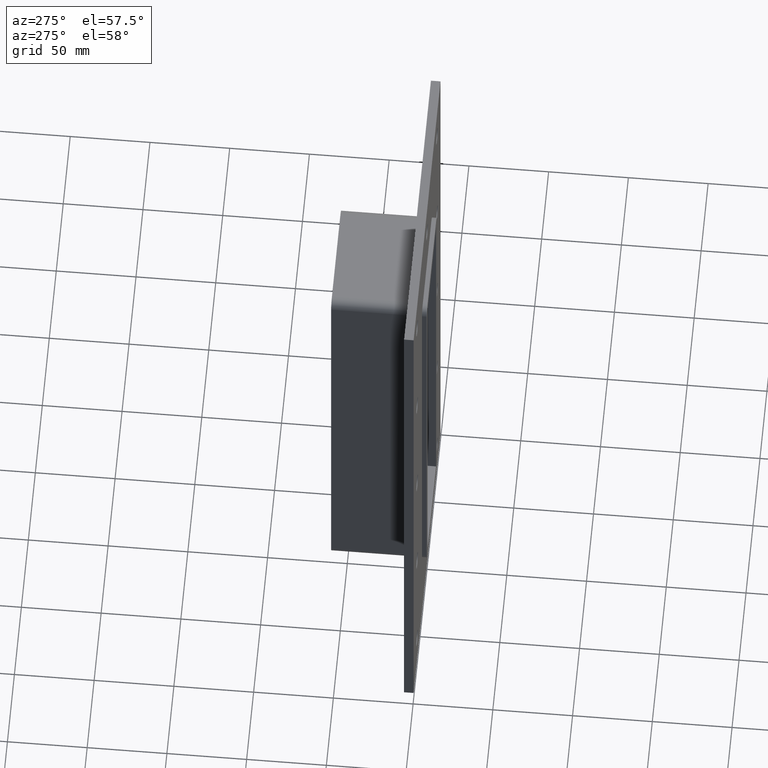
[diagram: clean part render]
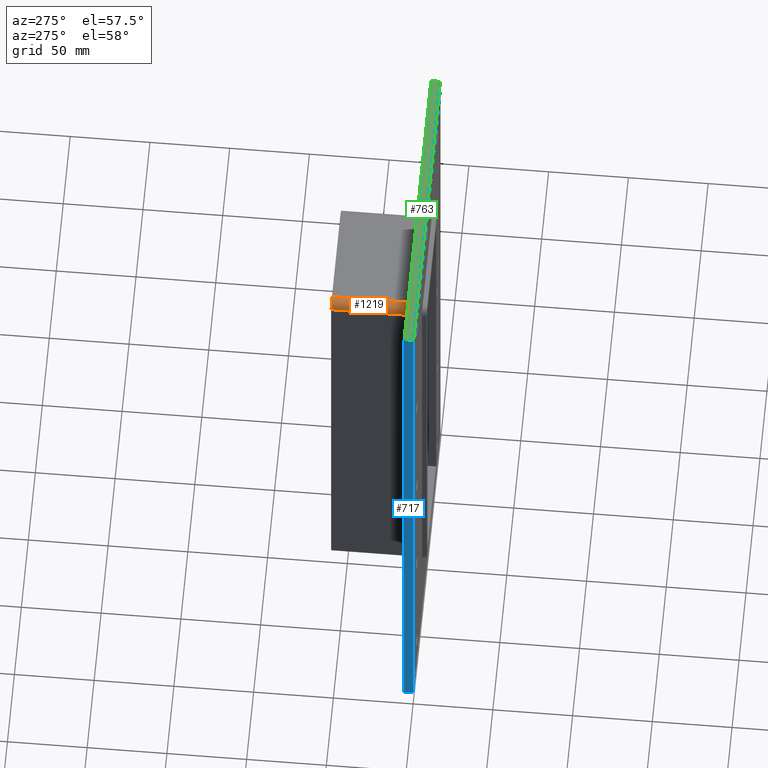
[diagram: same view with three faces highlighted in distinct colors, each labeled with its STEP entity id]
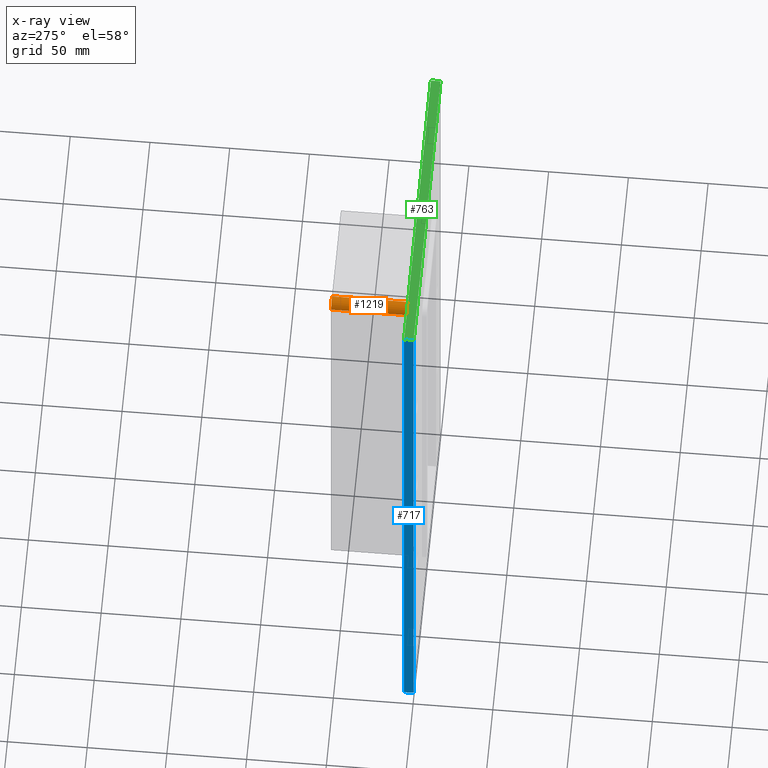
[diagram: x-ray of the same camera — body ghosted, the three highlighted faces saturated]
A machine part, auxiliary view with three faces highlighted in distinct colors.
The next image is the same camera in x-ray (body ghosted, the three faces saturated) — at least one of them is partly hidden behind the body in this view.
Their STEP definitions:

[orange] entity #1219 — the highlighted cylindrical surface (edge-blend (fillet) strip) has radius 6 mm, axis along (0, 1, 0).
#524=CARTESIAN_POINT('',(-30.250000000000004,6.000000000000001,145.0));
#525=VERTEX_POINT('',#524);
#532=CARTESIAN_POINT('',(-36.250000000000007,6.000000000000001,139.0));
#533=VERTEX_POINT('',#532);
#534=CARTESIAN_POINT('',(-30.250000000000004,6.000000000000001,139.0));
#535=DIRECTION('',(0.0,1.0,0.0));
#536=DIRECTION('',(-0.707106781186546,0.0,0.707106781186549));
#537=AXIS2_PLACEMENT_3D('',#534,#535,#536);
#538=CIRCLE('',#537,6.000000000000001);
#539=EDGE_CURVE('',#533,#525,#538,.T.);
#1177=CARTESIAN_POINT('',(-36.250000000000007,57.0,139.0));
#1178=VERTEX_POINT('',#1177);
#1179=CARTESIAN_POINT('',(-36.250000000000007,57.0,139.0));
#1180=DIRECTION('',(0.0,-1.0,0.0));
#1181=VECTOR('',#1180,51.0);
#1182=LINE('',#1179,#1181);
#1183=EDGE_CURVE('',#1178,#533,#1182,.T.);
#1195=CARTESIAN_POINT('',(-30.250000000000004,0.0,139.0));
#1196=DIRECTION('',(0.0,1.0,0.0));
#1197=DIRECTION('',(-0.707106781186546,0.0,0.707106781186549));
#1198=AXIS2_PLACEMENT_3D('',#1195,#1196,#1197);
#1199=CYLINDRICAL_SURFACE('',#1198,6.000000000000001);
#1200=ORIENTED_EDGE('',*,*,#539,.T.);
#1201=CARTESIAN_POINT('',(-30.250000000000004,57.0,145.0));
#1202=VERTEX_POINT('',#1201);
#1203=CARTESIAN_POINT('',(-30.250000000000004,6.000000000000001,145.0));
#1204=DIRECTION('',(0.0,1.0,0.0));
#1205=VECTOR('',#1204,51.0);
#1206=LINE('',#1203,#1205);
#1207=EDGE_CURVE('',#525,#1202,#1206,.T.);
#1208=ORIENTED_EDGE('',*,*,#1207,.T.);
#1209=CARTESIAN_POINT('',(-30.250000000000004,57.0,139.0));
#1210=DIRECTION('',(0.0,-1.0,0.0));
#1211=DIRECTION('',(-0.707106781186546,0.0,0.707106781186549));
#1212=AXIS2_PLACEMENT_3D('',#1209,#1210,#1211);
#1213=CIRCLE('',#1212,6.000000000000001);
#1214=EDGE_CURVE('',#1202,#1178,#1213,.T.);
#1215=ORIENTED_EDGE('',*,*,#1214,.T.);
#1216=ORIENTED_EDGE('',*,*,#1183,.T.);
#1217=EDGE_LOOP('',(#1200,#1208,#1215,#1216));
#1218=FACE_OUTER_BOUND('',#1217,.T.);
#1219=ADVANCED_FACE('',(#1218),#1199,.T.);

[blue] entity #717 — the highlighted planar face has unit normal (-1, 0, 0).
#409=CARTESIAN_POINT('',(-96.250000000000014,6.000000000000001,205.0));
#410=VERTEX_POINT('',#409);
#427=CARTESIAN_POINT('',(-96.250000000000014,6.000000000000001,-205.0));
#428=VERTEX_POINT('',#427);
#435=CARTESIAN_POINT('',(-96.250000000000014,6.000000000000001,-205.0));
#436=DIRECTION('',(0.0,0.0,1.0));
#437=VECTOR('',#436,410.0);
#438=LINE('',#435,#437);
#439=EDGE_CURVE('',#428,#410,#438,.T.);
#555=CARTESIAN_POINT('',(-96.250000000000014,0.0,205.0));
#556=VERTEX_POINT('',#555);
#565=CARTESIAN_POINT('',(-96.250000000000014,0.0,-205.0));
#566=VERTEX_POINT('',#565);
#567=CARTESIAN_POINT('',(-96.250000000000014,0.0,-205.0));
#568=DIRECTION('',(0.0,0.0,1.0));
#569=VECTOR('',#568,410.0);
#570=LINE('',#567,#569);
#571=EDGE_CURVE('',#566,#556,#570,.T.);
#696=CARTESIAN_POINT('',(-96.250000000000014,0.0,-205.0));
#697=DIRECTION('',(-1.0,0.0,0.0));
#698=DIRECTION('',(0.0,0.0,1.0));
#699=AXIS2_PLACEMENT_3D('',#696,#697,#698);
#700=PLANE('',#699);
#701=ORIENTED_EDGE('',*,*,#571,.T.);
#702=CARTESIAN_POINT('',(-96.250000000000014,0.0,205.0));
#703=DIRECTION('',(0.0,1.0,0.0));
#704=VECTOR('',#703,6.000000000000001);
#705=LINE('',#702,#704);
#706=EDGE_CURVE('',#556,#410,#705,.T.);
#707=ORIENTED_EDGE('',*,*,#706,.T.);
#708=ORIENTED_EDGE('',*,*,#439,.F.);
#709=CARTESIAN_POINT('',(-96.250000000000014,0.0,-205.0));
#710=DIRECTION('',(0.0,1.0,0.0));
#711=VECTOR('',#710,6.000000000000001);
#712=LINE('',#709,#711);
#713=EDGE_CURVE('',#566,#428,#712,.T.);
#714=ORIENTED_EDGE('',*,*,#713,.F.);
#715=EDGE_LOOP('',(#701,#707,#708,#714));
#716=FACE_OUTER_BOUND('',#715,.T.);
#717=ADVANCED_FACE('',(#716),#700,.T.);

[green] entity #763 — the highlighted planar face has unit normal (0, 0, 1).
#409=CARTESIAN_POINT('',(-96.250000000000014,6.000000000000001,205.0));
#410=VERTEX_POINT('',#409);
#411=CARTESIAN_POINT('',(96.249999999999986,6.000000000000001,205.0));
#412=VERTEX_POINT('',#411);
#413=CARTESIAN_POINT('',(-96.250000000000014,6.000000000000001,205.0));
#414=DIRECTION('',(1.0,0.0,0.0));
#415=VECTOR('',#414,192.5);
#416=LINE('',#413,#415);
#417=EDGE_CURVE('',#410,#412,#416,.T.);
#555=CARTESIAN_POINT('',(-96.250000000000014,0.0,205.0));
#556=VERTEX_POINT('',#555);
#557=CARTESIAN_POINT('',(96.25,0.0,205.0));
#558=VERTEX_POINT('',#557);
#559=CARTESIAN_POINT('',(-96.250000000000014,0.0,205.0));
#560=DIRECTION('',(1.0,0.0,0.0));
#561=VECTOR('',#560,192.5);
#562=LINE('',#559,#561);
#563=EDGE_CURVE('',#556,#558,#562,.T.);
#702=CARTESIAN_POINT('',(-96.250000000000014,0.0,205.0));
#703=DIRECTION('',(0.0,1.0,0.0));
#704=VECTOR('',#703,6.000000000000001);
#705=LINE('',#702,#704);
#706=EDGE_CURVE('',#556,#410,#705,.T.);
#743=CARTESIAN_POINT('',(96.25,0.0,205.0));
#744=DIRECTION('',(0.0,1.0,0.0));
#745=VECTOR('',#744,6.000000000000001);
#746=LINE('',#743,#745);
#747=EDGE_CURVE('',#558,#412,#746,.T.);
#752=CARTESIAN_POINT('',(-96.250000000000014,0.0,205.0));
#753=DIRECTION('',(0.0,0.0,1.0));
#754=DIRECTION('',(1.0,0.0,0.0));
#755=AXIS2_PLACEMENT_3D('',#752,#753,#754);
#756=PLANE('',#755);
#757=ORIENTED_EDGE('',*,*,#563,.T.);
#758=ORIENTED_EDGE('',*,*,#747,.T.);
#759=ORIENTED_EDGE('',*,*,#417,.F.);
#760=ORIENTED_EDGE('',*,*,#706,.F.);
#761=EDGE_LOOP('',(#757,#758,#759,#760));
#762=FACE_OUTER_BOUND('',#761,.T.);
#763=ADVANCED_FACE('',(#762),#756,.T.);